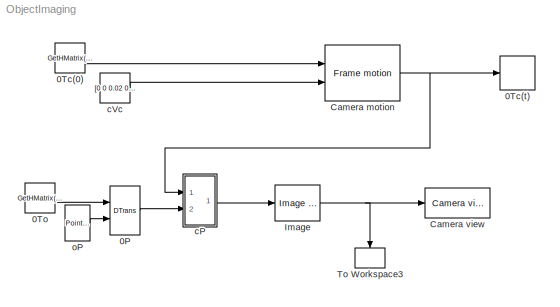
MODEL ObjectImaging
KIND model
BLOCK [Reference] 0P  REF=vs/Features/DTrans  (lib defined in slx_df1018bcac68)
  Ports = [2, 1]
  RTWFcnNameOpts = Auto
  RTWFileNameOpts = Auto
  RTWSystemCode = Auto
  SID = 1
  ShowPortLabels = on
  SourceBlock = vs/Features/DTrans
  SourceType = SubSystem
  TreatAsAtomicUnit = off
BLOCK [Constant] 0Tc(0)
  SID = 2
  Value = GetHMatrix(T0c_0)
  VectorParams1D = off
BLOCK [ToWorkspace] 0Tc(t)
  MaxDataPoints = inf
  Ports = [1]
  SID = 3
  SampleTime = -1
  SaveFormat = Structure With Time
  VariableName = T0c
BLOCK [Constant] 0To
  SID = 4
  Value = GetHMatrix(T0o)
  VectorParams1D = off
BLOCK [Reference] Camera motion  REF=vs/Pose/Frame motion  (lib defined in slx_df1018bcac68)
  Ports = [2, 1]
  RTWFcnNameOpts = Auto
  RTWFileNameOpts = Auto
  RTWSystemCode = Auto
  SID = 5
  ShowPortLabels = on
  SourceBlock = vs/Pose/Frame motion
  SourceType = SubSystem
  TreatAsAtomicUnit = off
BLOCK [Reference] Camera view  REF=vs/Camera/Camera view  (lib defined in slx_df1018bcac68)
  Ports = [1]
  SID = 6
  SourceBlock = vs/Camera/Camera view
  em = normal
  ms = 15
  st = -1
  umax = get(c,'hres')-1
  umin = 0
  vmax = get(c,'vres')-1
  vmin = 0
BLOCK [Reference] Image  REF=vs/Camera/Image of RSP  (lib defined in slx_df1018bcac68)
  Ports = [1, 1]
  SID = 7
  SourceBlock = vs/Camera/Image of RSP
  fu = get(c,'fu')
  fv = get(c,'fv')
  u0 = get(c,'u0')
  v0 = get(c,'v0')
BLOCK [ToWorkspace] To Workspace3
  MaxDataPoints = inf
  Ports = [1]
  SID = 8
  SampleTime = -1
  SaveFormat = Structure With Time
  VariableName = img
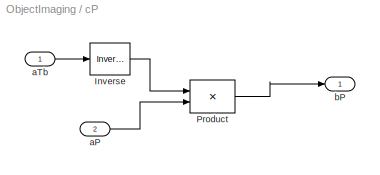
BLOCK [SubSystem] cP
  AncestorBlock = vs/Features/ITrans
  Ports = [2, 1]
  RequestExecContextInheritance = off
  SID = 9
BLOCK [Reference] cP/Inverse  REF=vs/Pose/Inverse  (lib defined in slx_df1018bcac68)
  Ports = [1, 1]
  RTWFcnNameOpts = Auto
  RTWFileNameOpts = Auto
  RTWSystemCode = Auto
  SID = 9:3
  ShowPortLabels = on
  SourceBlock = vs/Pose/Inverse
  SourceType = SubSystem
  TreatAsAtomicUnit = off
BLOCK [Product] cP/Product
  Multiplication = Matrix(*)
  Ports = [2, 1]
  SID = 9:4
BLOCK [Inport] cP/aP
  IconDisplay = Port number
  Port = 2
  SID = 9:2
BLOCK [Inport] cP/aTb
  IconDisplay = Port number
  SID = 9:1
BLOCK [Outport] cP/bP
  IconDisplay = Port number
  SID = 9:5
BLOCK [Constant] cVc
  SID = 10
  Value = [0 0 0.02 0 0 0]'
  VectorParams1D = off
BLOCK [Reference] oP  REF=vs/Features/Point Matrix  (lib defined in slx_df1018bcac68)
  Ports = [0, 1]
  SID = 11
  SourceBlock = vs/Features/Point Matrix
  m = coords(p)
LINE 0P:1 -> cP:2
LINE 0Tc(0):1 -> Camera motion:1
LINE 0To:1 -> 0P:1
NET Camera motion:1 -> 0Tc(t):1, cP:1
NET Image:1 -> Camera view:1, To Workspace3:1
LINE cP/Inverse:1 -> cP/Product:1
LINE cP/Product:1 -> cP/bP:1
LINE cP/aP:1 -> cP/Product:2
LINE cP/aTb:1 -> cP/Inverse:1
LINE cP:1 -> Image:1
LINE cVc:1 -> Camera motion:2
LINE oP:1 -> 0P:2
note: NET lines group one-source signal fan-out (src -> all destinations, sorted); 1:1 wires keep LINE
